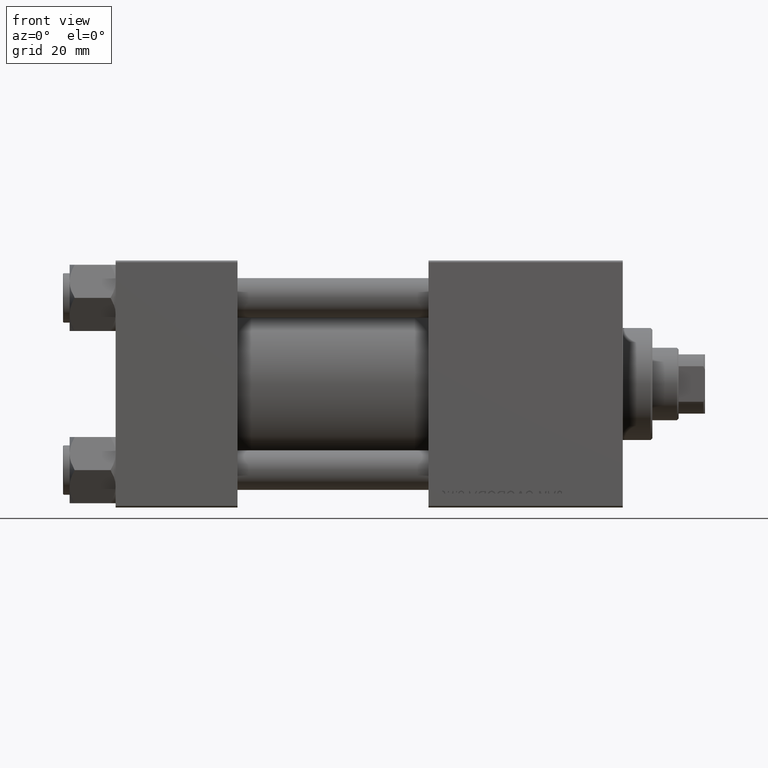
[diagram: clean part render]
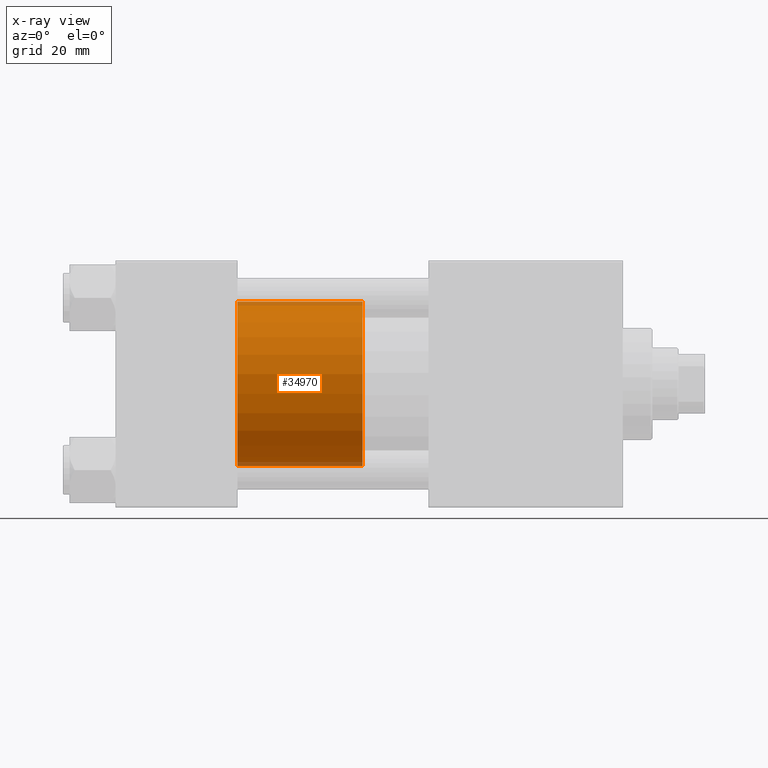
[diagram: x-ray — body ghosted, one internal face saturated and labeled with its STEP entity id]
A machine part, front view, then the same camera in x-ray: the body is ghosted and one INTERNAL B-rep face — a face not visible from any outside direction — is saturated and labeled: STEP entity #34970.
In plain terms, the highlighted cylindrical surface (partial cylindrical patch) has radius 25 mm, axis along (-1, 0, 0).
Its self-contained STEP definition (entity closure, byte-faithful):
#2226 = VERTEX_POINT ( 'NONE', #8840 ) ;
#2585 = DIRECTION ( 'NONE',  ( -1.000000000000000000, 0.000000000000000000, 0.000000000000000000 ) ) ;
#3379 = CARTESIAN_POINT ( 'NONE',  ( 0.000000000000000000, 0.000000000000000000, 0.000000000000000000 ) ) ;
#3684 = LINE ( 'NONE', #15602, #24589 ) ;
#4071 = ORIENTED_EDGE ( 'NONE', *, *, #4226, .F. ) ;
#4226 = EDGE_CURVE ( 'NONE', #48979, #14533, #46459, .T. ) ;
#7443 = DIRECTION ( 'NONE',  ( 0.000000000000000000, 0.000000000000000000, 1.000000000000000000 ) ) ;
#8840 = CARTESIAN_POINT ( 'NONE',  ( 25.00000000000000000, 3.061616997868383043E-15, 0.000000000000000000 ) ) ;
#14533 = VERTEX_POINT ( 'NONE', #45844 ) ;
#15584 = VECTOR ( 'NONE', #35032, 1000.000000000000000 ) ;
#15602 = CARTESIAN_POINT ( 'NONE',  ( 25.00000000000000000, 3.061616997868383043E-15, 38.00000000000000000 ) ) ;
#16224 = ORIENTED_EDGE ( 'NONE', *, *, #44038, .T. ) ;
#17168 = AXIS2_PLACEMENT_3D ( 'NONE', #3379, #7443, #38401 ) ;
#17724 = CARTESIAN_POINT ( 'NONE',  ( 25.00000000000000000, 3.061616997868383043E-15, 38.00000000000000000 ) ) ;
#19159 = CARTESIAN_POINT ( 'NONE',  ( 0.000000000000000000, 0.000000000000000000, 38.00000000000000000 ) ) ;
#19293 = CARTESIAN_POINT ( 'NONE',  ( -25.00000000000000000, 0.000000000000000000, 38.00000000000000000 ) ) ;
#21621 = DIRECTION ( 'NONE',  ( -0.000000000000000000, -0.000000000000000000, -1.000000000000000000 ) ) ;
#23468 = DIRECTION ( 'NONE',  ( 0.000000000000000000, 0.000000000000000000, 1.000000000000000000 ) ) ;
#24589 = VECTOR ( 'NONE', #31089, 1000.000000000000000 ) ;
#28291 = AXIS2_PLACEMENT_3D ( 'NONE', #37343, #21621, #2585 ) ;
#28502 = CIRCLE ( 'NONE', #17168, 25.00000000000000000 ) ;
#30591 = DIRECTION ( 'NONE',  ( 1.000000000000000000, 0.000000000000000000, 0.000000000000000000 ) ) ;
#31089 = DIRECTION ( 'NONE',  ( -0.000000000000000000, -0.000000000000000000, -1.000000000000000000 ) ) ;
#32799 = CYLINDRICAL_SURFACE ( 'NONE', #28291, 25.00000000000000000 ) ;
#33300 = CIRCLE ( 'NONE', #34897, 25.00000000000000000 ) ;
#34897 = AXIS2_PLACEMENT_3D ( 'NONE', #19159, #23468, #30591 ) ;
#34970 = ADVANCED_FACE ( 'NONE', ( #36603 ), #32799, .T. ) ;
#35032 = DIRECTION ( 'NONE',  ( -0.000000000000000000, -0.000000000000000000, -1.000000000000000000 ) ) ;
#36603 = FACE_OUTER_BOUND ( 'NONE', #38705, .T. ) ;
#37343 = CARTESIAN_POINT ( 'NONE',  ( 0.000000000000000000, 0.000000000000000000, 38.00000000000000000 ) ) ;
#38401 = DIRECTION ( 'NONE',  ( 1.000000000000000000, 0.000000000000000000, 0.000000000000000000 ) ) ;
#38501 = CARTESIAN_POINT ( 'NONE',  ( -25.00000000000000000, 0.000000000000000000, 38.00000000000000000 ) ) ;
#38705 = EDGE_LOOP ( 'NONE', ( #48289, #48026, #16224, #4071 ) ) ;
#41447 = EDGE_CURVE ( 'NONE', #46535, #48979, #33300, .T. ) ;
#44038 = EDGE_CURVE ( 'NONE', #2226, #14533, #28502, .T. ) ;
#45844 = CARTESIAN_POINT ( 'NONE',  ( -25.00000000000000000, 0.000000000000000000, 0.000000000000000000 ) ) ;
#46459 = LINE ( 'NONE', #19293, #15584 ) ;
#46535 = VERTEX_POINT ( 'NONE', #17724 ) ;
#46898 = EDGE_CURVE ( 'NONE', #46535, #2226, #3684, .T. ) ;
#48026 = ORIENTED_EDGE ( 'NONE', *, *, #46898, .T. ) ;
#48289 = ORIENTED_EDGE ( 'NONE', *, *, #41447, .F. ) ;
#48979 = VERTEX_POINT ( 'NONE', #38501 ) ;